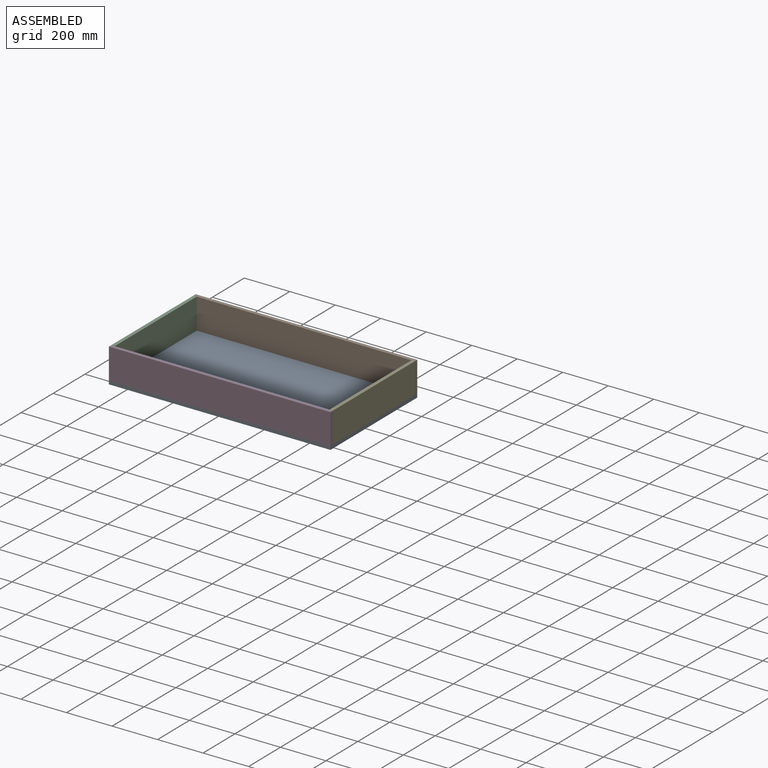
[diagram: assembled view]
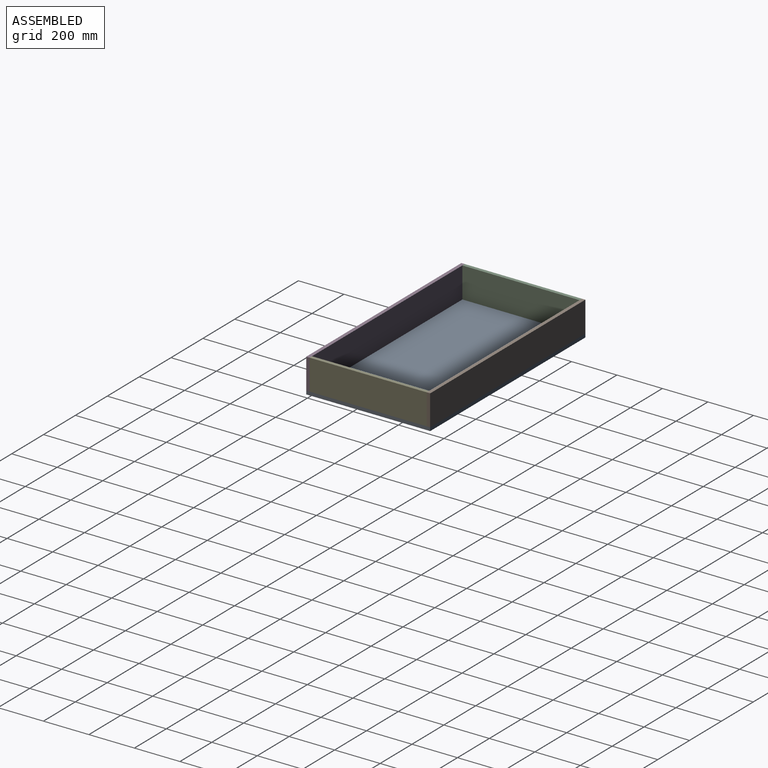
[diagram: assembled view, second angle]
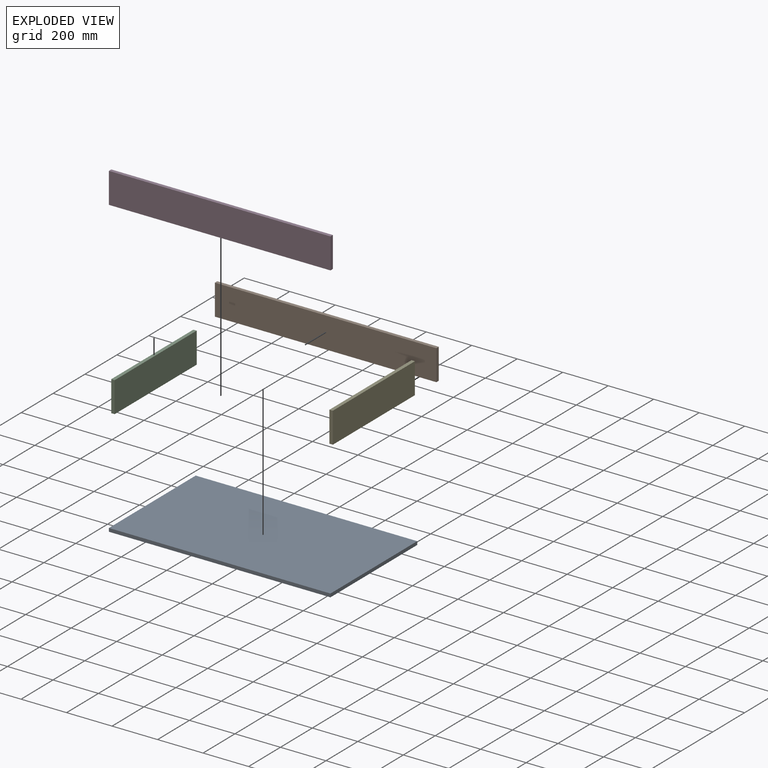
[diagram: exploded view]
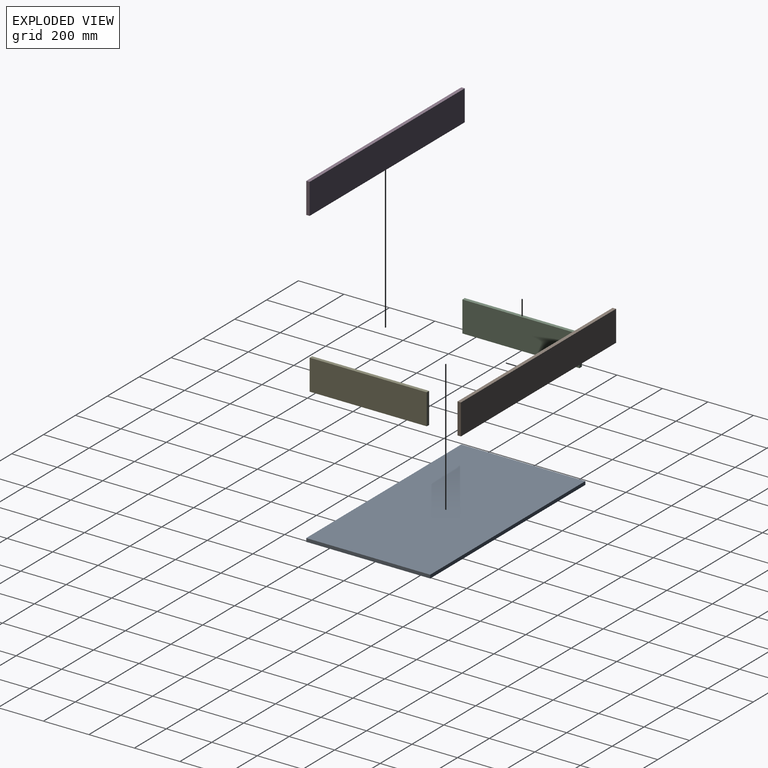
[diagram: exploded view, second angle]
ASSEMBLY  parts=5 mates=13
PART A: 6 faces, bbox 974x545x15 mm
  f0: plane 974x15mm, normal (0,1,0), area 14610mm2, adj f1,f3,f4,f5
  f1: plane 545x15mm, normal (-1,0,0), area 8175mm2, adj f0,f2,f4,f5
  f2: plane 974x15mm, normal (0,-1,0), area 14610mm2, adj f1,f3,f4,f5
  f3: plane 545x15mm, normal (1,0,0), area 8175mm2, adj f0,f2,f4,f5
  f4: plane 974x545mm, normal (0,0,1), area 530830mm2, adj f0,f1,f2,f3
  f5: plane 974x545mm, normal (0,0,-1), area 530830mm2, adj f0,f1,f2,f3
PART B: 6 faces, bbox 974x15x135 mm
  f0: plane 974x15mm, normal (0,0,1), area 14610mm2, adj f1,f3,f4,f5
  f1: plane 135x15mm, normal (-1,0,0), area 2025mm2, adj f0,f2,f4,f5
  f2: plane 974x15mm, normal (0,0,-1), area 14610mm2, adj f1,f3,f4,f5
  f3: plane 135x15mm, normal (1,0,0), area 2025mm2, adj f0,f2,f4,f5
  f4: plane 974x135mm, normal (0,-1,0), area 131490mm2, adj f0,f1,f2,f3
  f5: plane 974x135mm, normal (0,1,0), area 131490mm2, adj f0,f1,f2,f3
PART C: 6 faces, bbox 15x515x135 mm
  f0: plane 515x15mm, normal (0,0,1), area 7725mm2, adj f1,f3,f4,f5
  f1: plane 135x15mm, normal (0,-1,0), area 2025mm2, adj f0,f2,f4,f5
  f2: plane 515x15mm, normal (0,0,-1), area 7725mm2, adj f1,f3,f4,f5
  f3: plane 135x15mm, normal (0,1,0), area 2025mm2, adj f0,f2,f4,f5
  f4: plane 515x135mm, normal (1,0,0), area 69525mm2, adj f0,f1,f2,f3
  f5: plane 515x135mm, normal (-1,0,0), area 69525mm2, adj f0,f1,f2,f3
PART D: same geometry as B
PART E: same geometry as C
PLACE A t=(-51.25,192.44,-312.25)mm
PLACE B t=(-51.25,464.94,-229.75)mm
PLACE C t=(-538.25,192.44,-229.75)mm
PLACE D t=(-51.25,-65.06,-229.75)mm
PLACE E t=(420.75,192.44,-229.75)mm
MATE planar D.f2 <-> A.f4  axis (0,0,-1) through (-51.25,-72.56,-297.25)mm
MATE planar D.f1 <-> A.f1  axis (-1,0,0) through (-538.25,-72.56,-229.75)mm
MATE planar C.f3 <-> B.f4  axis (0,1,0) through (-530.75,449.94,-229.75)mm
MATE planar E.f2 <-> A.f4  axis (0,0,-1) through (428.25,192.44,-297.25)mm
MATE planar E.f3 <-> B.f4  axis (0,1,0) through (428.25,449.94,-229.75)mm
MATE planar B.f3 <-> A.f3  axis (1,0,0) through (435.75,457.44,-229.75)mm
MATE planar C.f5 <-> A.f1  axis (-1,0,0) through (-538.25,192.44,-229.75)mm
MATE planar D.f4 <-> A.f2  axis (0,-1,0) through (-51.25,-80.06,-229.75)mm
MATE planar C.f2 <-> A.f4  axis (0,0,-1) through (-530.75,192.44,-297.25)mm
MATE planar A.f4 <-> B.f2  axis (0,0,1) through (-51.25,192.44,-297.25)mm
MATE planar B.f5 <-> A.f0  axis (0,1,0) through (-51.25,464.94,-229.75)mm
MATE planar C.f1 <-> D.f5  axis (0,-1,0) through (-530.75,-65.06,-229.75)mm
MATE planar E.f4 <-> A.f3  axis (1,0,0) through (435.75,192.44,-229.75)mm
